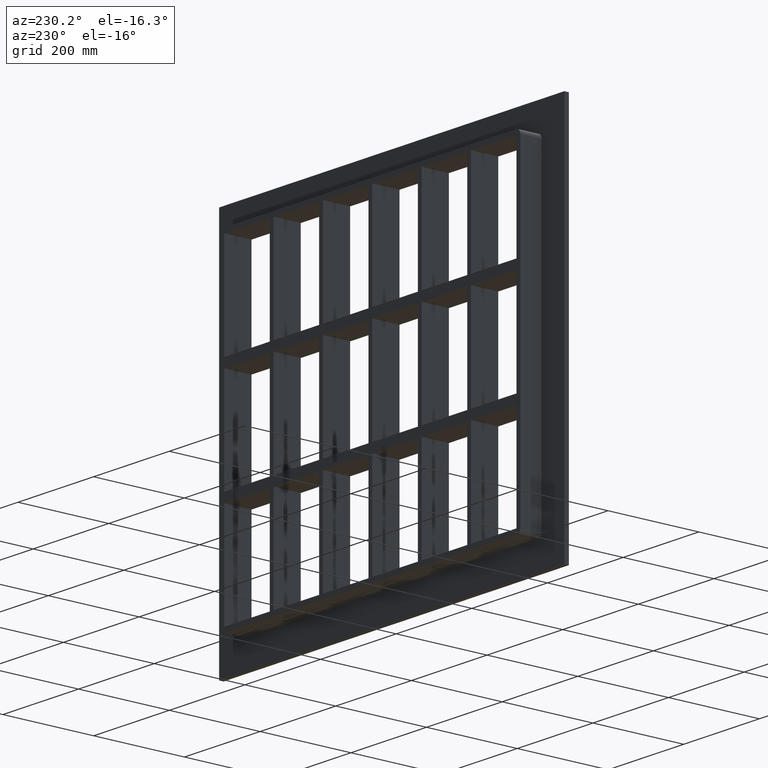
[diagram: clean part render]
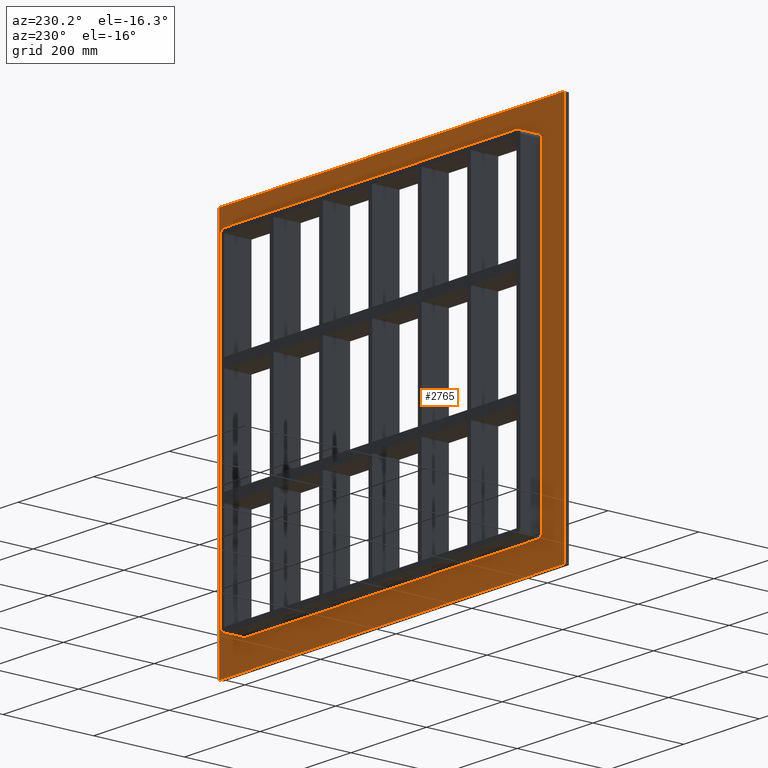
[diagram: same view with one face highlighted and labeled with its STEP entity id]
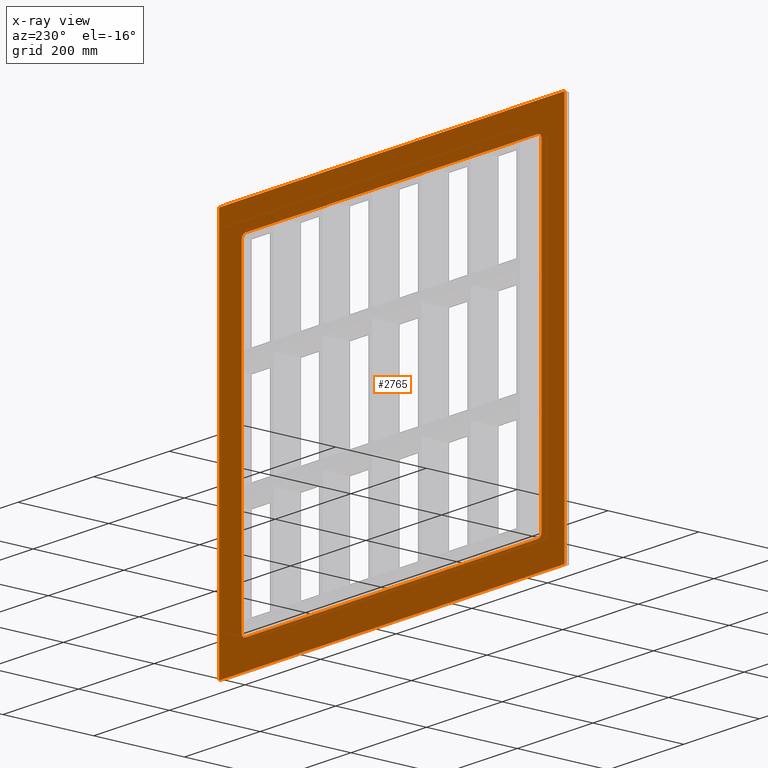
[diagram: x-ray of the same camera — body ghosted, the highlighted face saturated]
A machine part, auxiliary view. The second image highlights one B-rep face of the part: STEP entity #2765.
The next image is the same camera in x-ray: the body ghosted, the highlighted face saturated — about 0% of this face is hidden behind the body in this view.
In plain terms, the highlighted planar face has unit normal (0, 1, 0).
Its self-contained STEP definition (entity closure, byte-faithful):
#2656=CARTESIAN_POINT('',(0.0,10.0,0.0));
#2657=DIRECTION('',(0.0,1.0,0.0));
#2658=DIRECTION('',(0.0,0.0,1.0));
#2659=AXIS2_PLACEMENT_3D('',#2656,#2657,#2658);
#2660=PLANE('',#2659);
#2661=CARTESIAN_POINT('',(-456.50000000000006,10.0,417.0));
#2662=VERTEX_POINT('',#2661);
#2663=CARTESIAN_POINT('',(456.50000000000006,10.0,417.0));
#2664=VERTEX_POINT('',#2663);
#2665=CARTESIAN_POINT('',(-456.50000000000006,10.0,417.0));
#2666=DIRECTION('',(1.0,0.0,0.0));
#2667=VECTOR('',#2666,913.00000000000011);
#2668=LINE('',#2665,#2667);
#2669=EDGE_CURVE('',#2662,#2664,#2668,.T.);
#2670=ORIENTED_EDGE('',*,*,#2669,.T.);
#2671=CARTESIAN_POINT('',(456.50000000000006,10.0,-417.0));
#2672=VERTEX_POINT('',#2671);
#2673=CARTESIAN_POINT('',(456.50000000000006,10.0,417.0));
#2674=DIRECTION('',(0.0,0.0,-1.0));
#2675=VECTOR('',#2674,834.0);
#2676=LINE('',#2673,#2675);
#2677=EDGE_CURVE('',#2664,#2672,#2676,.T.);
#2678=ORIENTED_EDGE('',*,*,#2677,.T.);
#2679=CARTESIAN_POINT('',(-456.50000000000006,10.0,-417.0));
#2680=VERTEX_POINT('',#2679);
#2681=CARTESIAN_POINT('',(456.50000000000006,10.0,-417.0));
#2682=DIRECTION('',(-1.0,0.0,0.0));
#2683=VECTOR('',#2682,913.00000000000011);
#2684=LINE('',#2681,#2683);
#2685=EDGE_CURVE('',#2672,#2680,#2684,.T.);
#2686=ORIENTED_EDGE('',*,*,#2685,.T.);
#2687=CARTESIAN_POINT('',(-456.50000000000006,10.0,-417.0));
#2688=DIRECTION('',(0.0,0.0,1.0));
#2689=VECTOR('',#2688,834.0);
#2690=LINE('',#2687,#2689);
#2691=EDGE_CURVE('',#2680,#2662,#2690,.T.);
#2692=ORIENTED_EDGE('',*,*,#2691,.T.);
#2693=EDGE_LOOP('',(#2670,#2678,#2686,#2692));
#2694=FACE_OUTER_BOUND('',#2693,.T.);
#2695=CARTESIAN_POINT('',(-386.50000000000006,10.0,-357.0));
#2696=VERTEX_POINT('',#2695);
#2697=CARTESIAN_POINT('',(-396.50000000000006,10.0,-347.0));
#2698=VERTEX_POINT('',#2697);
#2699=CARTESIAN_POINT('',(-386.50000000000006,10.0,-347.0));
#2700=DIRECTION('',(0.0,1.0,0.0));
#2701=DIRECTION('',(-0.707106781186547,0.0,-0.707106781186547));
#2702=AXIS2_PLACEMENT_3D('',#2699,#2700,#2701);
#2703=CIRCLE('',#2702,9.999999999999998);
#2704=EDGE_CURVE('',#2696,#2698,#2703,.T.);
#2705=ORIENTED_EDGE('',*,*,#2704,.F.);
#2706=CARTESIAN_POINT('',(386.50000000000006,10.0,-357.0));
#2707=VERTEX_POINT('',#2706);
#2708=CARTESIAN_POINT('',(386.50000000000006,10.0,-357.0));
#2709=DIRECTION('',(-1.0,0.0,0.0));
#2710=VECTOR('',#2709,773.00000000000023);
#2711=LINE('',#2708,#2710);
#2712=EDGE_CURVE('',#2707,#2696,#2711,.T.);
#2713=ORIENTED_EDGE('',*,*,#2712,.F.);
#2714=CARTESIAN_POINT('',(396.50000000000006,10.0,-347.0));
#2715=VERTEX_POINT('',#2714);
#2716=CARTESIAN_POINT('',(386.50000000000006,10.0,-347.0));
#2717=DIRECTION('',(0.0,1.0,0.0));
#2718=DIRECTION('',(0.707106781186547,0.0,-0.707106781186547));
#2719=AXIS2_PLACEMENT_3D('',#2716,#2717,#2718);
#2720=CIRCLE('',#2719,9.999999999999998);
#2721=EDGE_CURVE('',#2715,#2707,#2720,.T.);
#2722=ORIENTED_EDGE('',*,*,#2721,.F.);
#2723=CARTESIAN_POINT('',(396.50000000000006,10.0,347.0));
#2724=VERTEX_POINT('',#2723);
#2725=CARTESIAN_POINT('',(396.50000000000006,10.0,347.0));
#2726=DIRECTION('',(0.0,0.0,-1.0));
#2727=VECTOR('',#2726,694.0);
#2728=LINE('',#2725,#2727);
#2729=EDGE_CURVE('',#2724,#2715,#2728,.T.);
#2730=ORIENTED_EDGE('',*,*,#2729,.F.);
#2731=CARTESIAN_POINT('',(386.50000000000006,10.0,357.0));
#2732=VERTEX_POINT('',#2731);
#2733=CARTESIAN_POINT('',(386.50000000000006,10.0,347.0));
#2734=DIRECTION('',(0.0,1.0,0.0));
#2735=DIRECTION('',(0.707106781186547,0.0,0.707106781186547));
#2736=AXIS2_PLACEMENT_3D('',#2733,#2734,#2735);
#2737=CIRCLE('',#2736,9.999999999999998);
#2738=EDGE_CURVE('',#2732,#2724,#2737,.T.);
#2739=ORIENTED_EDGE('',*,*,#2738,.F.);
#2740=CARTESIAN_POINT('',(-386.50000000000006,10.0,357.0));
#2741=VERTEX_POINT('',#2740);
#2742=CARTESIAN_POINT('',(-386.50000000000006,10.0,357.0));
#2743=DIRECTION('',(1.0,0.0,0.0));
#2744=VECTOR('',#2743,773.00000000000023);
#2745=LINE('',#2742,#2744);
#2746=EDGE_CURVE('',#2741,#2732,#2745,.T.);
#2747=ORIENTED_EDGE('',*,*,#2746,.F.);
#2748=CARTESIAN_POINT('',(-396.50000000000006,10.0,347.0));
#2749=VERTEX_POINT('',#2748);
#2750=CARTESIAN_POINT('',(-386.50000000000006,10.0,347.0));
#2751=DIRECTION('',(0.0,1.0,0.0));
#2752=DIRECTION('',(-0.707106781186547,0.0,0.707106781186547));
#2753=AXIS2_PLACEMENT_3D('',#2750,#2751,#2752);
#2754=CIRCLE('',#2753,9.999999999999998);
#2755=EDGE_CURVE('',#2749,#2741,#2754,.T.);
#2756=ORIENTED_EDGE('',*,*,#2755,.F.);
#2757=CARTESIAN_POINT('',(-396.50000000000006,10.0,-347.0));
#2758=DIRECTION('',(0.0,0.0,1.0));
#2759=VECTOR('',#2758,694.0);
#2760=LINE('',#2757,#2759);
#2761=EDGE_CURVE('',#2698,#2749,#2760,.T.);
#2762=ORIENTED_EDGE('',*,*,#2761,.F.);
#2763=EDGE_LOOP('',(#2705,#2713,#2722,#2730,#2739,#2747,#2756,#2762));
#2764=FACE_BOUND('',#2763,.T.);
#2765=ADVANCED_FACE('',(#2694,#2764),#2660,.T.);